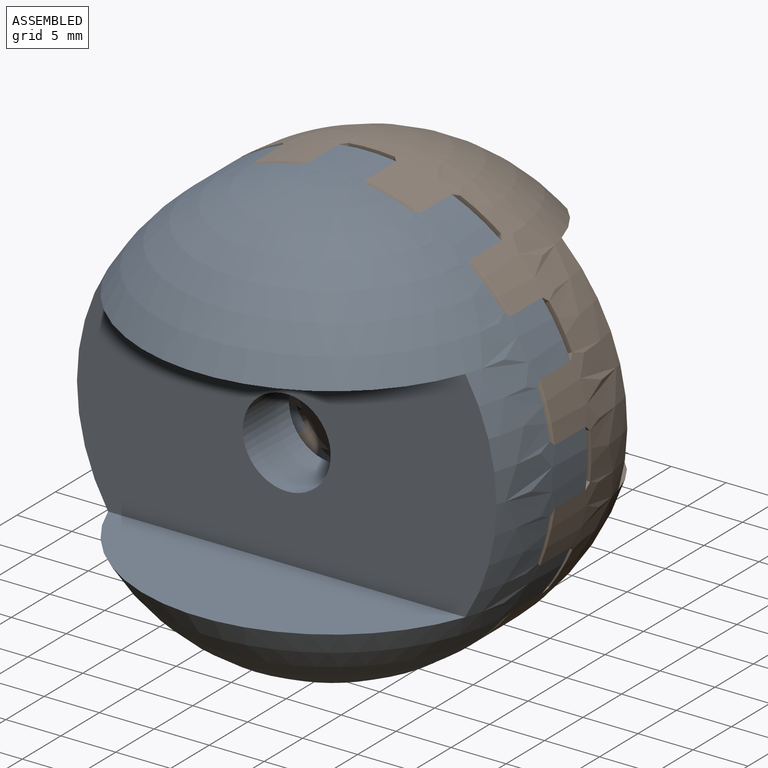
[diagram: assembled view]
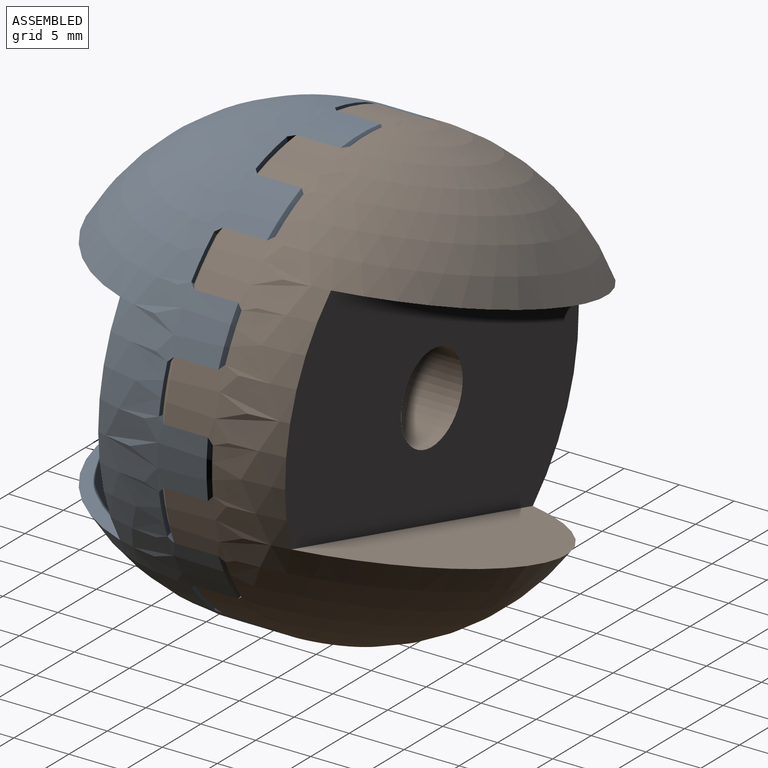
[diagram: assembled view, second angle]
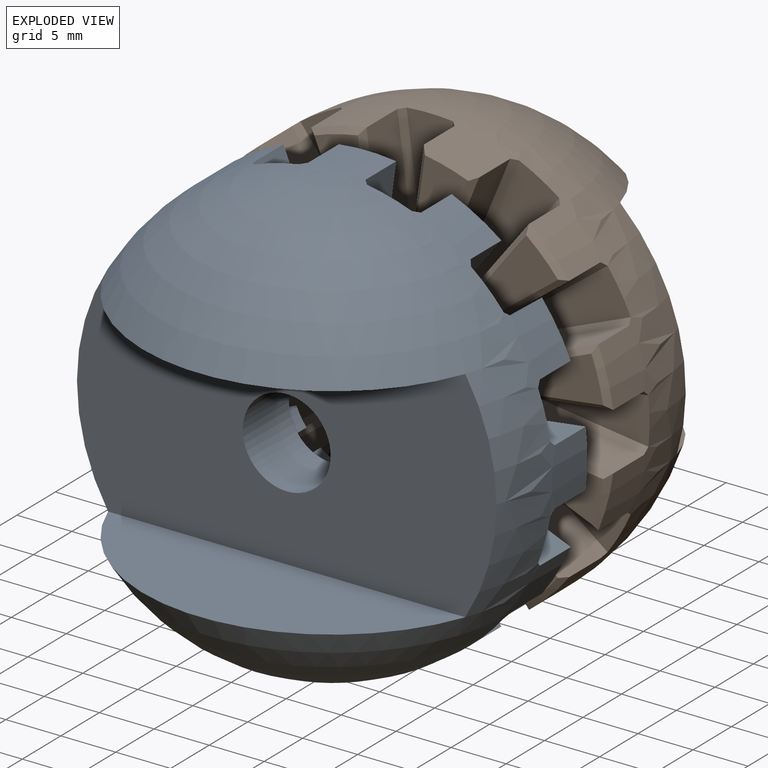
[diagram: exploded view]
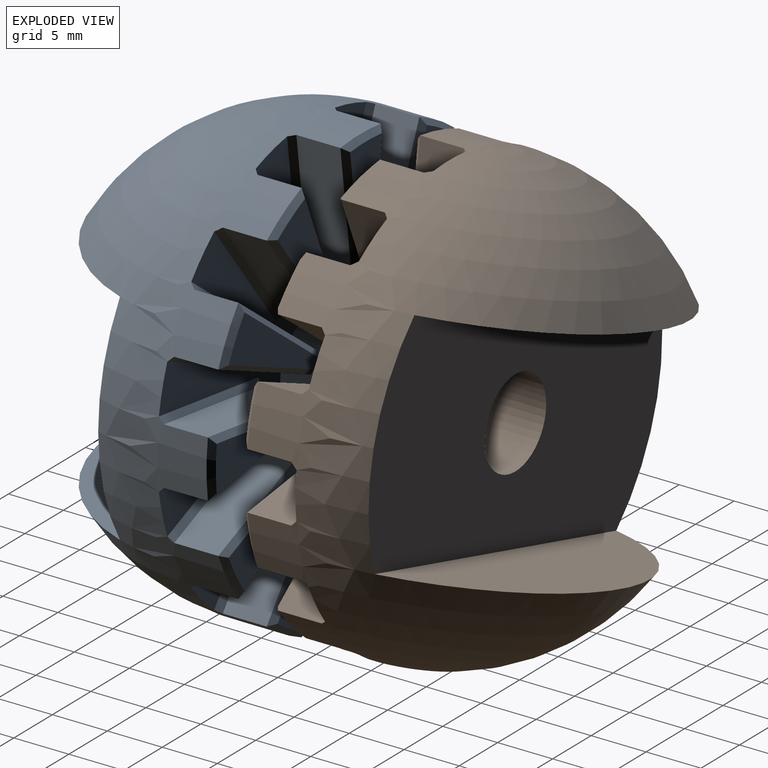
[diagram: exploded view, second angle]
ASSEMBLY  parts=2 mates=3
PART A: 138 faces, bbox 40x25x40 mm
  f0: sphere r=20mm, area 1512.3mm2, adj f14,f15,f16,f17,f18,f19,f20,f21
  f1: cylinder r=4mm len=8mm, axis (0,1,0), area 150.8mm2, adj f36,f137
  f2: cylinder r=7mm len=4.5mm, axis (0,-1,0), area 8.5mm2, adj f36,f60,f61,f94,f113,f126
  f3: cylinder r=7mm len=4.5mm, axis (0,-1,0), area 8.5mm2, adj f36,f42,f59,f98,f114,f127
  f4: cylinder r=7mm len=4.5mm, axis (0,-1,0), area 8.5mm2, adj f36,f56,f57,f86,f111,f124
  f5: cylinder r=7mm len=4.5mm, axis (0,-1,0), area 8.5mm2, adj f36,f55,f62,f90,f112,f125
  f6: cylinder r=7mm len=4.5mm, axis (0,-1,0), area 8.5mm2, adj f36,f50,f53,f74,f120,f133
  f7: cylinder r=7mm len=4.5mm, axis (0,-1,0), area 8.5mm2, adj f36,f51,f54,f70,f119,f132
  f8: cylinder r=7mm len=4.5mm, axis (0,-1,0), area 8.5mm2, adj f36,f48,f49,f78,f121,f134
  f9: cylinder r=7mm len=4.5mm, axis (0,-1,0), area 8.5mm2, adj f36,f47,f58,f82,f122,f123
  f10: cylinder r=7mm len=4.5mm, axis (0,-1,0), area 8.5mm2, adj f36,f39,f45,f110,f117,f130
  f11: cylinder r=7mm len=4.5mm, axis (0,-1,0), area 8.5mm2, adj f36,f43,f46,f106,f116,f129
  f12: cylinder r=7mm len=4.5mm, axis (0,-1,0), area 8.5mm2, adj f36,f41,f44,f102,f115,f128
  f13: cylinder r=7mm len=4.5mm, axis (0,-1,0), area 8.5mm2, adj f36,f40,f52,f66,f118,f131
  f14: cylinder r=20mm len=5.38mm, axis (0,-1,0), area 23.8mm2, adj f0,f60,f61,f91,f113,f126
  f15: cylinder r=20mm len=5.38mm, axis (0,-1,0), area 23.8mm2, adj f0,f42,f59,f95,f114,f127
  f16: cylinder r=20mm len=5.38mm, axis (0,-1,0), area 23.8mm2, adj f0,f56,f57,f83,f111,f124
  f17: cylinder r=20mm len=6.21mm, axis (0,-1,0), area 23.8mm2, adj f0,f55,f62,f87,f112,f125
  f18: cylinder r=20mm len=5.38mm, axis (0,-1,0), area 23.8mm2, adj f0,f50,f53,f71,f120,f133
  f19: cylinder r=20mm len=5.38mm, axis (0,-1,0), area 23.8mm2, adj f0,f51,f54,f67,f119,f132
  f20: cylinder r=20mm len=6.21mm, axis (0,-1,0), area 23.8mm2, adj f0,f48,f49,f75,f121,f134
  f21: cylinder r=20mm len=5.38mm, axis (0,-1,0), area 23.8mm2, adj f0,f47,f58,f79,f122,f123
  f22: cylinder r=20mm len=5.38mm, axis (0,-1,0), area 23.8mm2, adj f0,f39,f45,f107,f117,f130
  f23: cylinder r=20mm len=5.38mm, axis (0,-1,0), area 23.8mm2, adj f0,f43,f46,f103,f116,f129
  f24: cylinder r=20mm len=6.21mm, axis (0,-1,0), area 23.8mm2, adj f0,f41,f44,f99,f115,f128
  f25: plane 11.58x8.14mm, normal (0,1,0), area 30.4mm2, adj f91,f92,f93,f94
  f26: plane 11.58x8.14mm, normal (0,1,0), area 30.4mm2, adj f95,f96,f97,f98
  f27: plane 11.58x8.14mm, normal (0,1,0), area 30.4mm2, adj f83,f84,f85,f86
  f28: plane 12.02x4.1mm, normal (0,1,0), area 30.4mm2, adj f87,f88,f89,f90
  f29: plane 11.58x8.14mm, normal (0,1,0), area 30.4mm2, adj f71,f72,f73,f74
  f30: plane 11.58x8.14mm, normal (0,1,0), area 30.4mm2, adj f67,f68,f69,f70
  f31: plane 12.02x4.1mm, normal (0,1,0), area 30.4mm2, adj f75,f76,f77,f78
  f32: plane 11.58x8.14mm, normal (0,1,0), area 30.4mm2, adj f79,f80,f81,f82
  f33: plane 11.58x8.14mm, normal (0,1,0), area 30.4mm2, adj f107,f108,f109,f110
  f34: plane 11.58x8.14mm, normal (0,1,0), area 30.4mm2, adj f103,f104,f105,f106
  f35: plane 12.02x4.1mm, normal (0,1,0), area 30.4mm2, adj f99,f100,f101,f102
  f36: plane 39.52x39.52mm, normal (0,1,0), area 499mm2, adj f0,f1,f2,f3,f4,f5,f6,f7
  f37: cylinder r=20mm len=6.21mm, axis (0,-1,0), area 23.8mm2, adj f0,f40,f52,f63,f118,f131
  f38: plane 12.02x4.1mm, normal (0,1,0), area 30.4mm2, adj f63,f64,f65,f66
  f39: plane 12.01x4.98mm, normal (0.92,0,0.38), area 52mm2, adj f10,f22,f109,f130
  f40: plane 12.89x4mm, normal (-0.99,0,-0.13), area 52mm2, adj f13,f37,f64,f118
  f41: plane 12.89x4mm, normal (0.13,0,-0.99), area 52mm2, adj f12,f24,f100,f115
  f42: plane 12.01x4.98mm, normal (-0.38,0,0.92), area 52mm2, adj f3,f15,f97,f127
  f43: plane 12.01x4.98mm, normal (-0.38,0,-0.92), area 52mm2, adj f11,f23,f104,f116
  f44: plane 12.89x4mm, normal (0.13,0,0.99), area 52mm2, adj f12,f24,f101,f128
  f45: plane 10.31x7.91mm, normal (-0.79,0,-0.61), area 52mm2, adj f10,f22,f108,f117
  f46: plane 10.31x7.91mm, normal (0.61,0,0.79), area 52mm2, adj f11,f23,f105,f129
  f47: plane 12.01x4.98mm, normal (0.38,0,0.92), area 52mm2, adj f9,f21,f80,f122
  f48: plane 12.89x4mm, normal (-0.13,0,-0.99), area 52mm2, adj f8,f20,f77,f134
  f49: plane 12.89x4mm, normal (-0.13,0,0.99), area 52mm2, adj f8,f20,f76,f121
  f50: plane 12.01x4.98mm, normal (0.38,0,-0.92), area 52mm2, adj f6,f18,f73,f133
  f51: plane 12.01x4.98mm, normal (-0.92,0,0.38), area 52mm2, adj f7,f19,f68,f119
  f52: plane 12.89x4mm, normal (0.99,0,-0.13), area 52mm2, adj f13,f37,f65,f131
  f53: plane 10.31x7.91mm, normal (-0.61,0,0.79), area 52mm2, adj f6,f18,f72,f120
  f54: plane 10.31x7.91mm, normal (0.79,0,-0.61), area 52mm2, adj f7,f19,f69,f132
  f55: plane 12.89x4mm, normal (0.99,0,0.13), area 52mm2, adj f5,f17,f88,f112
  f56: plane 12.01x4.98mm, normal (-0.92,0,-0.38), area 52mm2, adj f4,f16,f85,f124
  f57: plane 10.31x7.91mm, normal (0.79,0,0.61), area 52mm2, adj f4,f16,f84,f111
  f58: plane 10.31x7.91mm, normal (-0.61,0,-0.79), area 52mm2, adj f9,f21,f81,f123
  f59: plane 10.31x7.91mm, normal (0.61,0,-0.79), area 52mm2, adj f3,f15,f96,f114
  f60: plane 10.31x7.91mm, normal (-0.79,0,0.61), area 52mm2, adj f2,f14,f93,f126
  f61: plane 12.01x4.98mm, normal (0.92,0,-0.38), area 52mm2, adj f2,f14,f92,f113
  f62: plane 12.89x4mm, normal (-0.99,0,0.13), area 52mm2, adj f5,f17,f89,f125
  f63: cone r=19.5mm half-angle=45deg, axis (0,-1,0), area 3.3mm2, adj f37,f38,f64,f65
  f64: plane 12.9x2.14mm, normal (-0.7,0.71,-0.09), area 8.8mm2, adj f38,f40,f63,f66
  f65: plane 12.9x2.14mm, normal (0.7,0.71,-0.09), area 8.8mm2, adj f38,f52,f63,f66
  f66: cone r=7mm half-angle=45deg, axis (0,1,0), area 1mm2, adj f13,f38,f64,f65
  f67: cone r=19.5mm half-angle=45deg, axis (0,-1,0), area 3.3mm2, adj f19,f30,f68,f69
  f68: plane 12.02x5.26mm, normal (-0.65,0.71,0.27), area 8.8mm2, adj f30,f51,f67,f70
  f69: plane 10.33x8.03mm, normal (0.56,0.71,-0.43), area 8.8mm2, adj f30,f54,f67,f70
  f70: cone r=7mm half-angle=45deg, axis (0,1,0), area 1mm2, adj f7,f30,f68,f69
  f71: cone r=19.5mm half-angle=45deg, axis (0,-1,0), area 3.3mm2, adj f18,f29,f72,f73
  f72: plane 10.33x8.03mm, normal (-0.43,0.71,0.56), area 8.8mm2, adj f29,f53,f71,f74
  f73: plane 12.02x5.26mm, normal (0.27,0.71,-0.65), area 8.8mm2, adj f29,f50,f71,f74
  f74: cone r=7mm half-angle=45deg, axis (0,1,0), area 1mm2, adj f6,f29,f72,f73
  f75: cone r=19.5mm half-angle=45deg, axis (0,-1,0), area 3.3mm2, adj f20,f31,f76,f77
  f76: plane 12.9x2.14mm, normal (-0.09,0.71,0.7), area 8.8mm2, adj f31,f49,f75,f78
  f77: plane 12.9x2.14mm, normal (-0.09,0.71,-0.7), area 8.8mm2, adj f31,f48,f75,f78
  f78: cone r=7mm half-angle=45deg, axis (0,1,0), area 1mm2, adj f8,f31,f76,f77
  f79: cone r=19.5mm half-angle=45deg, axis (0,-1,0), area 3.3mm2, adj f21,f32,f80,f81
  f80: plane 12.02x5.26mm, normal (0.27,0.71,0.65), area 8.8mm2, adj f32,f47,f79,f82
  f81: plane 10.33x8.03mm, normal (-0.43,0.71,-0.56), area 8.8mm2, adj f32,f58,f79,f82
  f82: cone r=7mm half-angle=45deg, axis (0,1,0), area 1mm2, adj f9,f32,f80,f81
  f83: cone r=19.5mm half-angle=45deg, axis (0,-1,0), area 3.3mm2, adj f16,f27,f84,f85
  f84: plane 10.33x8.03mm, normal (0.56,0.71,0.43), area 8.8mm2, adj f27,f57,f83,f86
  f85: plane 12.02x5.26mm, normal (-0.65,0.71,-0.27), area 8.8mm2, adj f27,f56,f83,f86
  f86: cone r=7mm half-angle=45deg, axis (0,1,0), area 1mm2, adj f4,f27,f84,f85
  f87: cone r=19.5mm half-angle=45deg, axis (0,-1,0), area 3.3mm2, adj f17,f28,f88,f89
  f88: plane 12.9x2.14mm, normal (0.7,0.71,0.09), area 8.8mm2, adj f28,f55,f87,f90
  f89: plane 12.9x2.14mm, normal (-0.7,0.71,0.09), area 8.8mm2, adj f28,f62,f87,f90
  f90: cone r=7mm half-angle=45deg, axis (0,1,0), area 1mm2, adj f5,f28,f88,f89
  f91: cone r=19.5mm half-angle=45deg, axis (0,-1,0), area 3.3mm2, adj f14,f25,f92,f93
  f92: plane 12.02x5.26mm, normal (0.65,0.71,-0.27), area 8.8mm2, adj f25,f61,f91,f94
  f93: plane 10.33x8.03mm, normal (-0.56,0.71,0.43), area 8.8mm2, adj f25,f60,f91,f94
  f94: cone r=7mm half-angle=45deg, axis (0,1,0), area 1mm2, adj f2,f25,f92,f93
  f95: cone r=19.5mm half-angle=45deg, axis (0,-1,0), area 3.3mm2, adj f15,f26,f96,f97
  f96: plane 10.33x8.03mm, normal (0.43,0.71,-0.56), area 8.8mm2, adj f26,f59,f95,f98
  f97: plane 12.02x5.26mm, normal (-0.27,0.71,0.65), area 8.8mm2, adj f26,f42,f95,f98
  f98: cone r=7mm half-angle=45deg, axis (0,1,0), area 1mm2, adj f3,f26,f96,f97
  f99: cone r=19.5mm half-angle=45deg, axis (0,-1,0), area 3.3mm2, adj f24,f35,f100,f101
  f100: plane 12.9x2.14mm, normal (0.09,0.71,-0.7), area 8.8mm2, adj f35,f41,f99,f102
  f101: plane 12.9x2.14mm, normal (0.09,0.71,0.7), area 8.8mm2, adj f35,f44,f99,f102
  f102: cone r=7mm half-angle=45deg, axis (0,1,0), area 1mm2, adj f12,f35,f100,f101
  f103: cone r=19.5mm half-angle=45deg, axis (0,-1,0), area 3.3mm2, adj f23,f34,f104,f105
  f104: plane 12.02x5.26mm, normal (-0.27,0.71,-0.65), area 8.8mm2, adj f34,f43,f103,f106
  f105: plane 10.33x8.03mm, normal (0.43,0.71,0.56), area 8.8mm2, adj f34,f46,f103,f106
  f106: cone r=7mm half-angle=45deg, axis (0,1,0), area 1mm2, adj f11,f34,f104,f105
  f107: cone r=19.5mm half-angle=45deg, axis (0,-1,0), area 3.3mm2, adj f22,f33,f108,f109
  f108: plane 10.33x8.03mm, normal (-0.56,0.71,-0.43), area 8.8mm2, adj f33,f45,f107,f110
  f109: plane 12.02x5.26mm, normal (0.65,0.71,0.27), area 8.8mm2, adj f33,f39,f107,f110
  f110: cone r=7mm half-angle=45deg, axis (0,1,0), area 1mm2, adj f10,f33,f108,f109
  f111: plane 10.63x8.31mm, normal (0.56,0.71,0.43), area 9.2mm2, adj f4,f16,f36,f57
  f112: plane 12.97x2.19mm, normal (0.7,0.71,0.09), area 9.2mm2, adj f5,f17,f36,f55
  f113: plane 12.2x5.44mm, normal (0.65,0.71,-0.27), area 9.2mm2, adj f2,f14,f36,f61
  f114: plane 10.63x8.31mm, normal (0.43,0.71,-0.56), area 9.2mm2, adj f3,f15,f36,f59
  f115: plane 12.97x2.19mm, normal (0.09,0.71,-0.7), area 9.2mm2, adj f12,f24,f36,f41
  f116: plane 12.2x5.44mm, normal (-0.27,0.71,-0.65), area 9.2mm2, adj f11,f23,f36,f43
  f117: plane 10.63x8.31mm, normal (-0.56,0.71,-0.43), area 9.2mm2, adj f10,f22,f36,f45
  f118: plane 12.97x2.19mm, normal (-0.7,0.71,-0.09), area 9.2mm2, adj f13,f36,f37,f40
  f119: plane 12.2x5.44mm, normal (-0.65,0.71,0.27), area 9.2mm2, adj f7,f19,f36,f51
  f120: plane 10.63x8.31mm, normal (-0.43,0.71,0.56), area 9.2mm2, adj f6,f18,f36,f53
  f121: plane 12.97x2.19mm, normal (-0.09,0.71,0.7), area 9.2mm2, adj f8,f20,f36,f49
  f122: plane 12.2x5.44mm, normal (0.27,0.71,0.65), area 9.2mm2, adj f9,f21,f36,f47
  f123: plane 10.63x8.31mm, normal (-0.43,0.71,-0.56), area 9.2mm2, adj f9,f21,f36,f58
  f124: plane 12.2x5.44mm, normal (-0.65,0.71,-0.27), area 9.2mm2, adj f4,f16,f36,f56
  f125: plane 12.97x2.19mm, normal (-0.7,0.71,0.09), area 9.2mm2, adj f5,f17,f36,f62
  f126: plane 10.63x8.31mm, normal (-0.56,0.71,0.43), area 9.2mm2, adj f2,f14,f36,f60
  f127: plane 12.2x5.44mm, normal (-0.27,0.71,0.65), area 9.2mm2, adj f3,f15,f36,f42
  f128: plane 12.97x2.19mm, normal (0.09,0.71,0.7), area 9.2mm2, adj f12,f24,f36,f44
  f129: plane 10.63x8.31mm, normal (0.43,0.71,0.56), area 9.2mm2, adj f11,f23,f36,f46
  f130: plane 12.2x5.44mm, normal (0.65,0.71,0.27), area 9.2mm2, adj f10,f22,f36,f39
  f131: plane 12.97x2.19mm, normal (0.7,0.71,-0.09), area 9.2mm2, adj f13,f36,f37,f52
  f132: plane 10.63x8.31mm, normal (0.56,0.71,-0.43), area 9.2mm2, adj f7,f19,f36,f54
  f133: plane 12.2x5.44mm, normal (0.27,0.71,-0.65), area 9.2mm2, adj f6,f18,f36,f50
  f134: plane 12.97x2.19mm, normal (-0.09,0.71,-0.7), area 9.2mm2, adj f8,f20,f36,f48
  f135: plane 32.5x11.32mm, normal (0,0,-1), area 267.6mm2, adj f0,f137
  f136: plane 32.5x11.32mm, normal (0,0,1), area 267.6mm2, adj f0,f137
  f137: plane 38.16x20mm, normal (0,-1,0), area 676.3mm2, adj f0,f1,f135,f136
PART B: same geometry as A
PLACE A t=(0.02,6.04,-0.2)mm fixed
PLACE B rot(axis=(-0.99,0,-0.13),180deg) t=(0.02,11.04,-0.2)mm
MATE planar A.f1 <-> B.f29  axis (0,1,0) through (0.02,6.04,-0.2)mm
MATE cylindrical A.f1 <-> B.f1  axis (0,1,0) through (0.02,6.04,-0.2)mm
MATE planar B.f55 <-> A.f40  axis (0.99,0,0.13) through (-1.74,8.54,13.18)mm
